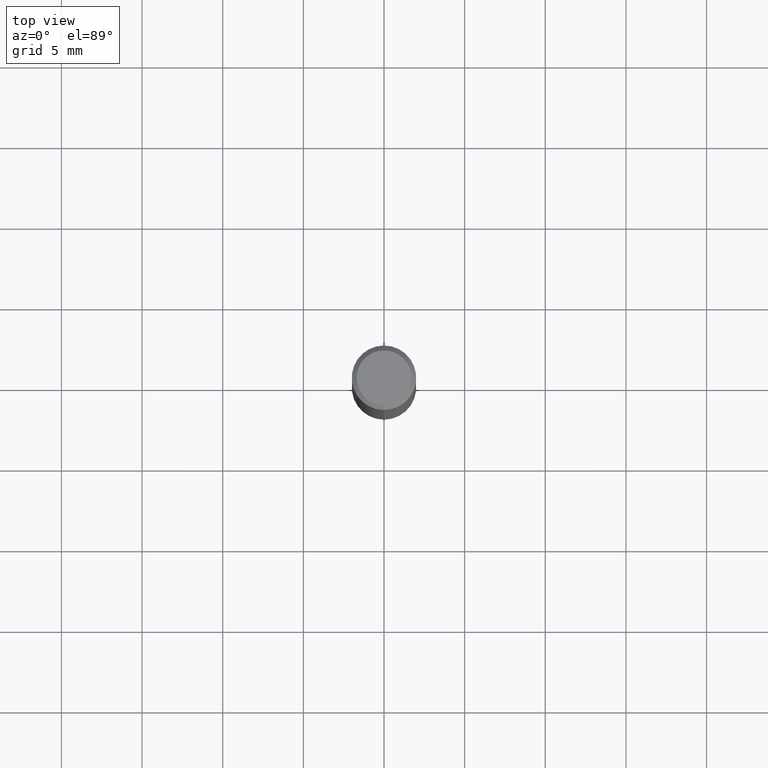
[diagram: clean part render]
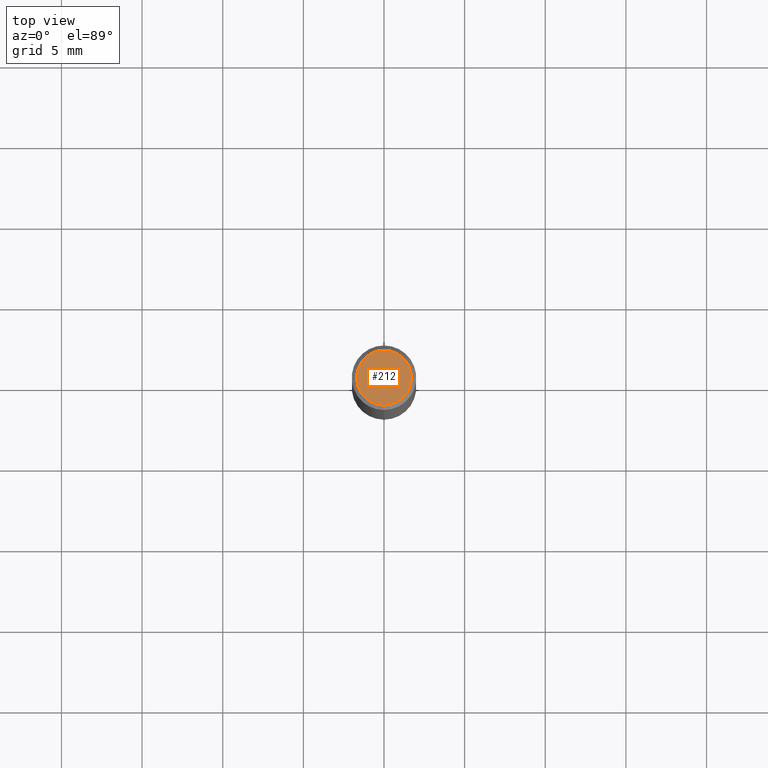
[diagram: same view with one face highlighted and labeled with its STEP entity id]
A machine part, top view. The second image highlights one B-rep face of the part: STEP entity #212.
In plain terms, the highlighted planar face has unit normal (-0, 0, 1).
Its self-contained STEP definition (entity closure, byte-faithful):
#96=EDGE_CURVE('',#122,#126,#238,.T.);
#122=VERTEX_POINT('',#267);
#126=VERTEX_POINT('',#271);
#130=EDGE_CURVE('',#126,#122,#275,.T.);
#212=ADVANCED_FACE('',(#369),#370,.T.);
#238=CIRCLE('',#389,1.7);
#267=CARTESIAN_POINT('',(2.08183080149804E-016,-1.7,0.0));
#271=CARTESIAN_POINT('',(0.0,1.7,0.0));
#275=CIRCLE('',#436,1.7);
#369=FACE_OUTER_BOUND('',#554,.T.);
#370=PLANE('',#555);
#389=AXIS2_PLACEMENT_3D('',#567,#568,#569);
#436=AXIS2_PLACEMENT_3D('',#611,#612,#613);
#554=EDGE_LOOP('',(#735,#736));
#555=AXIS2_PLACEMENT_3D('',#737,#738,#739);
#567=CARTESIAN_POINT('',(0.0,0.0,0.0));
#568=DIRECTION('',(0.0,0.0,-1.0));
#569=DIRECTION('',(0.0,1.0,0.0));
#611=CARTESIAN_POINT('',(0.0,0.0,0.0));
#612=DIRECTION('',(0.0,0.0,-1.0));
#613=DIRECTION('',(0.0,1.0,0.0));
#735=ORIENTED_EDGE('',*,*,#130,.F.);
#736=ORIENTED_EDGE('',*,*,#96,.F.);
#737=CARTESIAN_POINT('',(0.0,0.85,0.0));
#738=DIRECTION('',(-0.0,0.0,1.0));
#739=DIRECTION('',(0.0,-1.0,0.0));